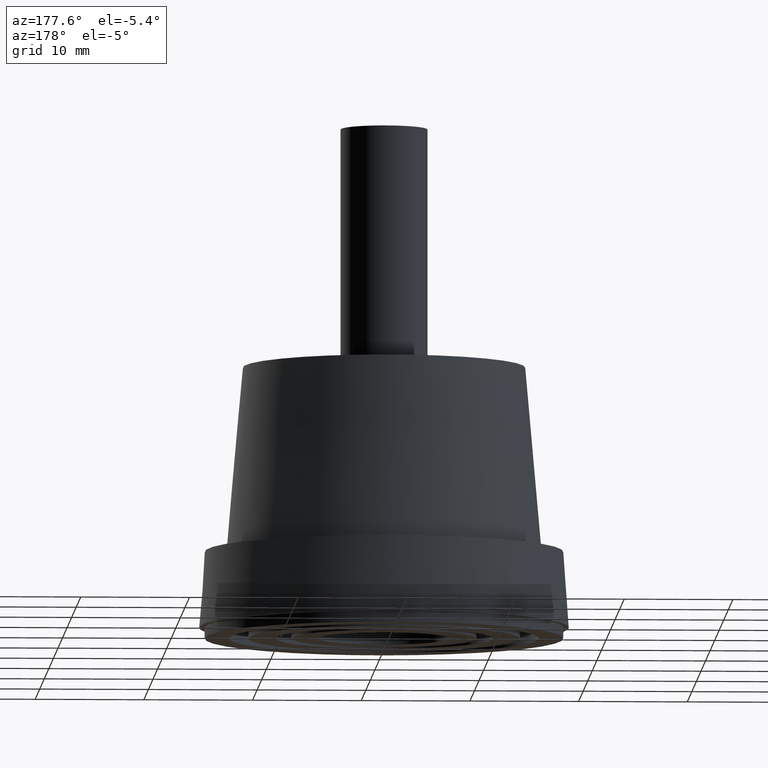
[diagram: clean part render]
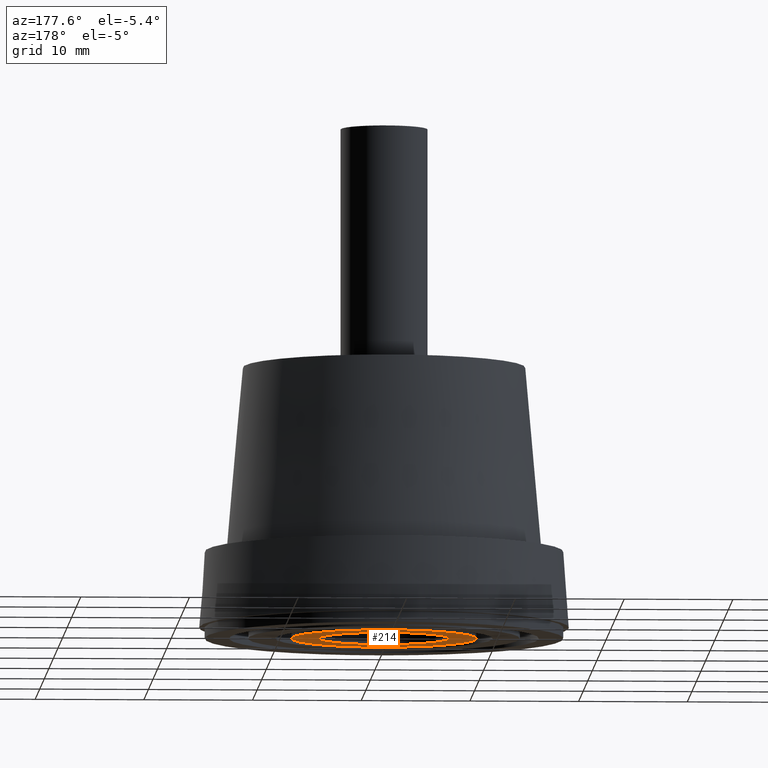
[diagram: same view with one face highlighted and labeled with its STEP entity id]
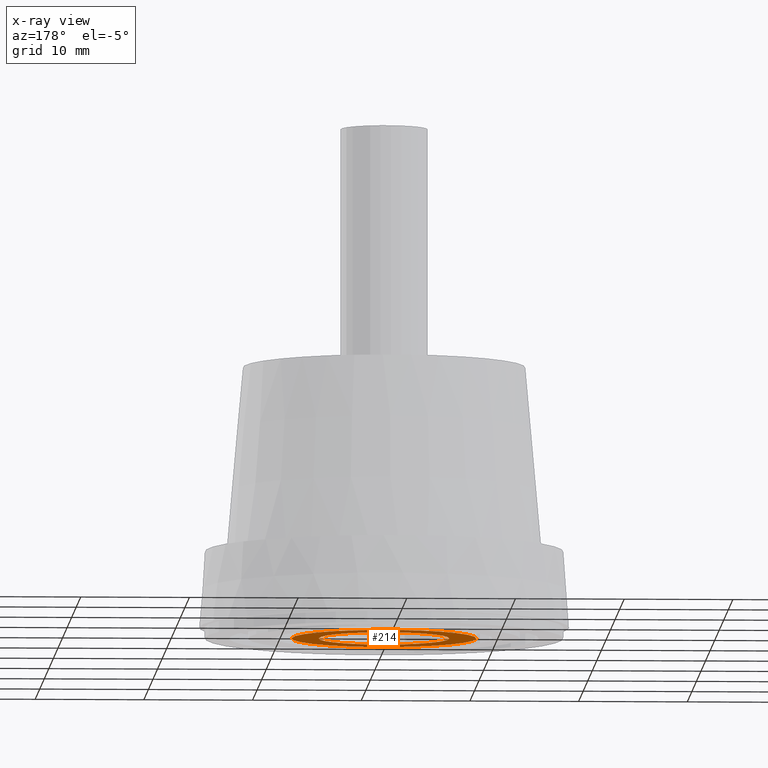
[diagram: x-ray of the same camera — body ghosted, the highlighted face saturated]
A machine part, auxiliary view. The second image highlights one B-rep face of the part: STEP entity #214.
The next image is the same camera in x-ray: the body ghosted, the highlighted face saturated — about 0% of this face is hidden behind the body in this view.
In plain terms, the highlighted planar face has unit normal (0, 0, 1).
Its self-contained STEP definition (entity closure, byte-faithful):
#26=PLANE('',#253);
#43=FACE_BOUND('',#98,.T.);
#62=FACE_OUTER_BOUND('',#97,.T.);
#97=EDGE_LOOP('',(#187));
#98=EDGE_LOOP('',(#188));
#104=CIRCLE('',#226,8.5);
#108=CIRCLE('',#233,6.);
#122=VERTEX_POINT('',#345);
#126=VERTEX_POINT('',#356);
#140=EDGE_CURVE('',#122,#122,#104,.T.);
#144=EDGE_CURVE('',#126,#126,#108,.T.);
#187=ORIENTED_EDGE('',*,*,#140,.T.);
#188=ORIENTED_EDGE('',*,*,#144,.T.);
#214=ADVANCED_FACE('',(#62,#43),#26,.F.);
#226=AXIS2_PLACEMENT_3D('',#346,#274,#275);
#233=AXIS2_PLACEMENT_3D('',#357,#288,#289);
#253=AXIS2_PLACEMENT_3D('',#385,#328,#329);
#274=DIRECTION('center_axis',(0.,0.,-1.));
#275=DIRECTION('ref_axis',(1.,0.,0.));
#288=DIRECTION('center_axis',(0.,0.,1.));
#289=DIRECTION('ref_axis',(1.,0.,0.));
#328=DIRECTION('center_axis',(0.,0.,1.));
#329=DIRECTION('ref_axis',(1.,0.,0.));
#345=CARTESIAN_POINT('',(-8.5,1.04094977927525E-15,0.));
#346=CARTESIAN_POINT('Origin',(0.,0.,0.));
#356=CARTESIAN_POINT('',(-6.,7.34788079488412E-16,0.));
#357=CARTESIAN_POINT('Origin',(0.,0.,0.));
#385=CARTESIAN_POINT('Origin',(-1.06553885377178E-15,0.,0.));